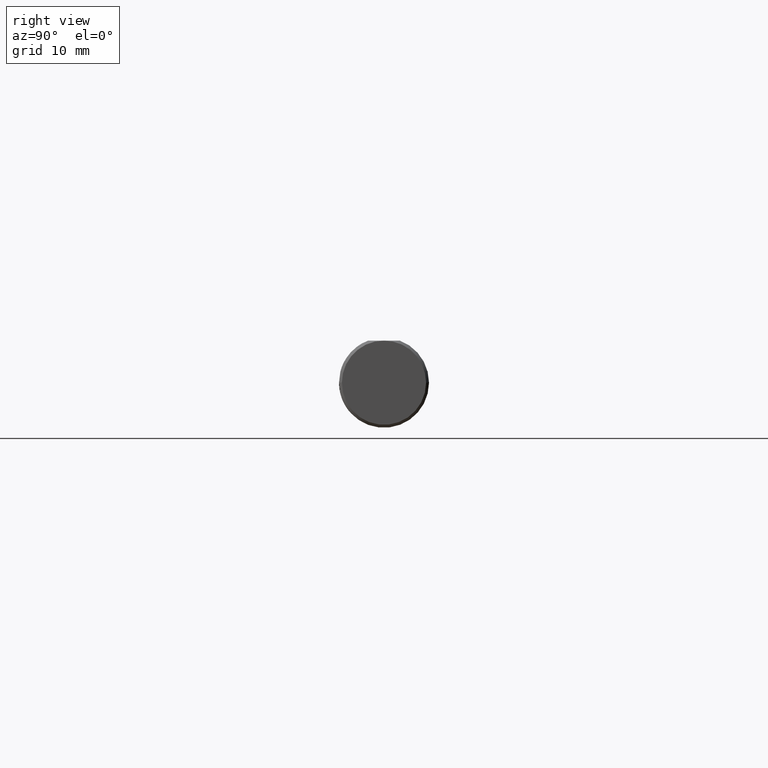
[diagram: clean part render]
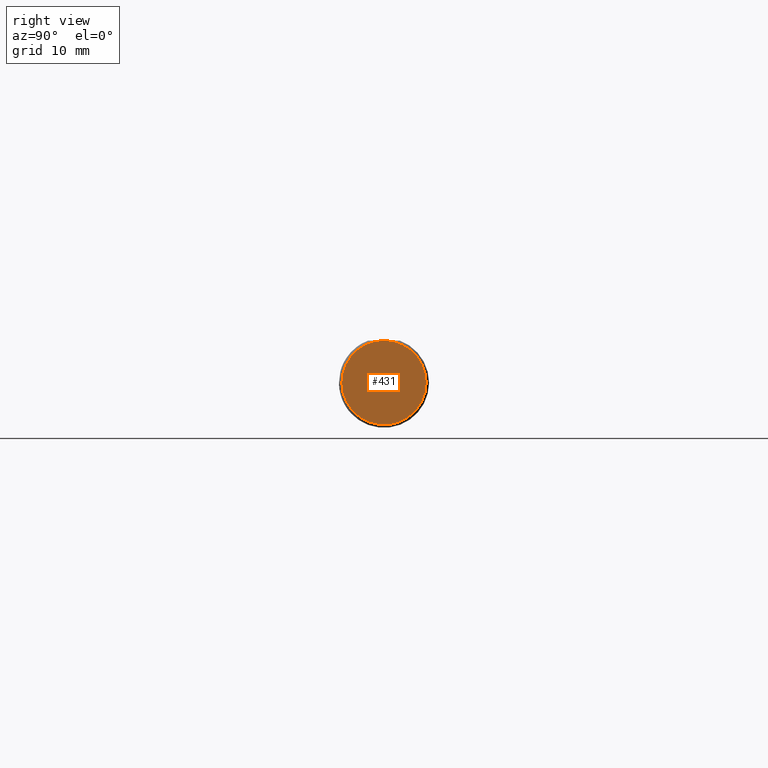
[diagram: same view with one face highlighted and labeled with its STEP entity id]
A machine part, right view. The second image highlights one B-rep face of the part: STEP entity #431.
In plain terms, the highlighted planar face has unit normal (1, 0, -0).
Its self-contained STEP definition (entity closure, byte-faithful):
#34 = VERTEX_POINT ( 'NONE', #108 ) ;
#35 = DIRECTION ( 'NONE',  ( 1.000000000000000000, 1.224646799147352961E-16, -0.000000000000000000 ) ) ;
#77 = AXIS2_PLACEMENT_3D ( 'NONE', #90, #172, #840 ) ;
#90 = CARTESIAN_POINT ( 'NONE',  ( 9.558368267345076472E-18, 2.449293598294705921E-16, 0.000000000000000000 ) ) ;
#108 = CARTESIAN_POINT ( 'NONE',  ( -3.241309669837331952E-33, 2.086455426436077518E-16, 0.1461000000000000354 ) ) ;
#170 = DIRECTION ( 'NONE',  ( 1.000000000000000000, 1.224646799147352961E-16, -0.000000000000000000 ) ) ;
#172 = DIRECTION ( 'NONE',  ( 1.000000000000000000, 1.224646799147352961E-16, -0.000000000000000000 ) ) ;
#177 = ORIENTED_EDGE ( 'NONE', *, *, #731, .T. ) ;
#228 = DIRECTION ( 'NONE',  ( 1.000000000000000000, 1.224646799147352961E-16, -0.000000000000000000 ) ) ;
#261 = VERTEX_POINT ( 'NONE', #543 ) ;
#283 = CIRCLE ( 'NONE', #400, 0.1461000000000006183 ) ;
#345 = EDGE_LOOP ( 'NONE', ( #349, #177, #756 ) ) ;
#349 = ORIENTED_EDGE ( 'NONE', *, *, #456, .T. ) ;
#356 = CIRCLE ( 'NONE', #77, 0.1461000000000006183 ) ;
#393 = VERTEX_POINT ( 'NONE', #724 ) ;
#395 = CARTESIAN_POINT ( 'NONE',  ( 9.558368267345076472E-18, 2.449293598294705921E-16, 0.000000000000000000 ) ) ;
#400 = AXIS2_PLACEMENT_3D ( 'NONE', #559, #228, #500 ) ;
#401 = CIRCLE ( 'NONE', #413, 0.1461000000000006183 ) ;
#413 = AXIS2_PLACEMENT_3D ( 'NONE', #395, #170, #769 ) ;
#431 = ADVANCED_FACE ( 'NONE', ( #835 ), #715, .T. ) ;
#434 = DIRECTION ( 'NONE',  ( -1.224646799147352961E-16, 1.000000000000000000, 0.000000000000000000 ) ) ;
#456 = EDGE_CURVE ( 'NONE', #34, #261, #356, .T. ) ;
#500 = DIRECTION ( 'NONE',  ( -1.224646799147352961E-16, 1.000000000000000000, 0.000000000000000000 ) ) ;
#521 = EDGE_CURVE ( 'NONE', #393, #34, #283, .T. ) ;
#543 = CARTESIAN_POINT ( 'NONE',  ( 2.745045800288797907E-17, -0.1461000000000003685, 0.000000000000000000 ) ) ;
#559 = CARTESIAN_POINT ( 'NONE',  ( 9.558368267345076472E-18, 2.449293598294705921E-16, 0.000000000000000000 ) ) ;
#715 = PLANE ( 'NONE',  #799 ) ;
#724 = CARTESIAN_POINT ( 'NONE',  ( -8.333721468197824584E-18, 0.1461000000000008403, 1.850441313511654549E-17 ) ) ;
#731 = EDGE_CURVE ( 'NONE', #261, #393, #401, .T. ) ;
#756 = ORIENTED_EDGE ( 'NONE', *, *, #521, .T. ) ;
#769 = DIRECTION ( 'NONE',  ( -1.224646799147352961E-16, 1.000000000000000000, 0.000000000000000000 ) ) ;
#778 = CARTESIAN_POINT ( 'NONE',  ( 9.558368267345107287E-18, 1.170562510367581579E-33, 0.000000000000000000 ) ) ;
#799 = AXIS2_PLACEMENT_3D ( 'NONE', #778, #35, #434 ) ;
#835 = FACE_OUTER_BOUND ( 'NONE', #345, .T. ) ;
#840 = DIRECTION ( 'NONE',  ( -1.224646799147352961E-16, 1.000000000000000000, 0.000000000000000000 ) ) ;